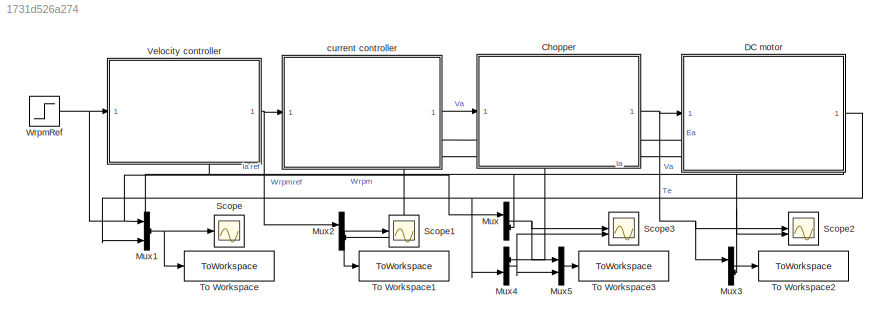
MODEL slx_1731d526a274
KIND model
CONFIG AbsTol = auto
CONFIG EnableMultiTasking = off
CONFIG FixedStep = 1e-5
CONFIG MaxStep = auto
CONFIG MinStep = auto
CONFIG RelTol = 1e-4
CONFIG SampleTimeConstraint = Unconstrained
CONFIG SolverName = FixedStepAuto
CONFIG StartTime = 0.0
CONFIG StopTime = 1
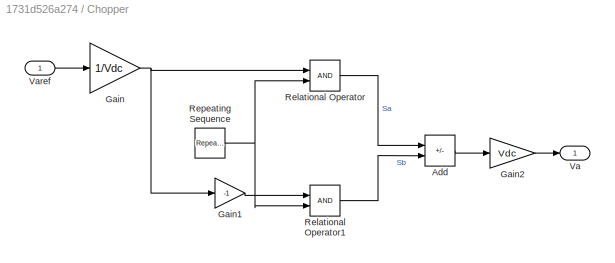
BLOCK [SubSystem] Chopper
  NameLocation = top
BLOCK [Sum] Chopper/Add
  IconShape = rectangular
  Inputs = +-
  SaturateOnIntegerOverflow = on
BLOCK [Gain] Chopper/Gain
  Gain = 1/Vdc
BLOCK [Gain] Chopper/Gain1
  Gain = -1
BLOCK [Gain] Chopper/Gain2
  Gain = Vdc
  OutDataTypeStr = double
BLOCK [RelationalOperator] Chopper/Relational Operator
  InputSameDT = off
  OutDataTypeStr = boolean
  RndMeth = Simplest
BLOCK [RelationalOperator] Chopper/Relational Operator1
  InputSameDT = off
  OutDataTypeStr = boolean
  RndMeth = Simplest
BLOCK [Reference] Chopper/Repeating Sequence  REF=simulink/Sources/Repeating
Sequence
  SourceBlock = simulink/Sources/Repeating\nSequence
  SourceType = Repeating table
BLOCK [Outport] Chopper/Va
BLOCK [Inport] Chopper/Varef
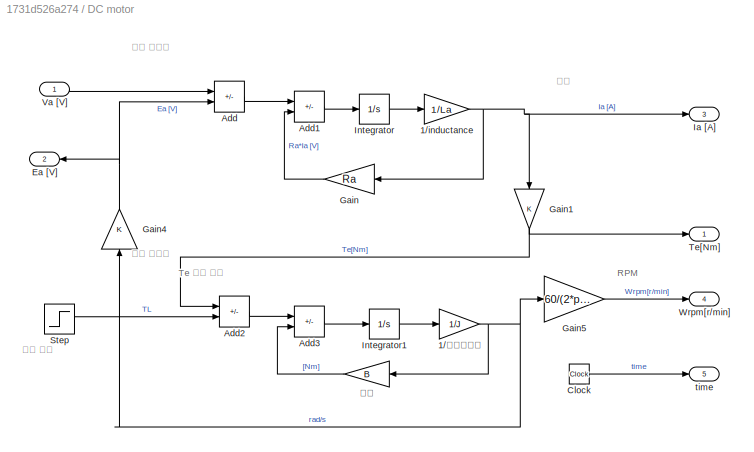
BLOCK [SubSystem] DC motor
  NameLocation = top
  PortSchema = {"entries":[{"content":{"sides":[{"content":{"connectorIds":["In1"]},"type":"ConnectorPlacement.EquallySpacedRectSide","uuid":"85d4c81a-2654-4ec9-b469-a8d409c866cc"},{"content":{"connectorIds":["Out1"],"side":"RIGHT"},"type":"ConnectorPlacement.EquallySpacedRectSide","uuid":"d9a934b4-e029-4d73-8471-bbe711fb3a53"},{"content":{"connectorIds":["Out5"],"side":"TOP"},"type":"ConnectorPlacement.EquallyS...<+410ch>
BLOCK [Gain] DC motor/1//inductance
  Gain = 1/La
BLOCK [Gain] DC motor/1//관성모멘트
  Gain = 1/J
BLOCK [Sum] DC motor/Add
  IconShape = rectangular
  Inputs = +-
BLOCK [Sum] DC motor/Add1
  IconShape = rectangular
  Inputs = +-
BLOCK [Sum] DC motor/Add2
  IconShape = rectangular
  Inputs = +-
BLOCK [Sum] DC motor/Add3
  IconShape = rectangular
  Inputs = +-
BLOCK [Clock] DC motor/Clock
BLOCK [Outport] DC motor/Ea [V]
  Port = 2
BLOCK [Gain] DC motor/Gain
  Gain = Ra
  NameLocation = top
BLOCK [Gain] DC motor/Gain1
  Gain = K
  NameLocation = left
BLOCK [Gain] DC motor/Gain4
  Gain = K
  NameLocation = right
BLOCK [Gain] DC motor/Gain5
  Gain = 60/(2*pi)
BLOCK [Outport] DC motor/Ia [A]
  Port = 3
BLOCK [Integrator] DC motor/Integrator
BLOCK [Integrator] DC motor/Integrator1
BLOCK [Step] DC motor/Step
  After = -10
  NameLocation = top
  SampleTime = 0
  Time = 0.5
BLOCK [Outport] DC motor/Te[Nm]
BLOCK [Inport] DC motor/Va [V]
BLOCK [Outport] DC motor/Wrpm[r//min]
  Port = 4
BLOCK [Outport] DC motor/time
  Port = 5
BLOCK [Gain] DC motor/마찰
  Gain = B
BLOCK [Mux] Mux
  DisplayOption = bar
  Inputs = 2
BLOCK [Mux] Mux1
  DisplayOption = bar
  Inputs = 3
BLOCK [Mux] Mux2
  DisplayOption = bar
  Inputs = 2
BLOCK [Mux] Mux3
  DisplayOption = bar
  Inputs = 2
BLOCK [Mux] Mux4
  DisplayOption = bar
  Inputs = 2
BLOCK [Mux] Mux5
  DisplayOption = bar
  Inputs = 2
BLOCK [Scope] Scope
  Floating = off
  NumInputPorts = 1
  ScopeSpecificationString = Simulink.scopes.TimeScopeBlockCfg('CurrentConfiguration', extmgr.ConfigurationSet(extmgr.Configuration('Core','General UI',true),extmgr.Configuration('Core','Source UI',true),extmgr.Configuration('Sources','WiredSimulink',true),extmgr.Configuration('Visuals','Time Domain',true,'SerializedDisplays',{struct('MinYLimReal','-312.5','MaxYLimReal','2812.5','YLabelReal','','MinYLimMag',' 0.00000','MaxYLi...<+1609ch>
BLOCK [Scope] Scope1
  Floating = off
  NumInputPorts = 1
  ScopeSpecificationString = Simulink.scopes.TimeScopeBlockCfg('CurrentConfiguration', extmgr.ConfigurationSet(extmgr.Configuration('Core','General UI',true),extmgr.Configuration('Core','Source UI',true),extmgr.Configuration('Sources','WiredSimulink',true,'DataLoggingVariableName','ScopeData1'),extmgr.Configuration('Visuals','Time Domain',true,'SerializedDisplays',{struct('MinYLimReal','-14.73631','MaxYLimReal','26.36625','YL...<+1652ch>
BLOCK [Scope] Scope2
  Floating = off
  NumInputPorts = 2
  ScopeSpecificationString = Simulink.scopes.TimeScopeBlockCfg('CurrentConfiguration', extmgr.ConfigurationSet(extmgr.Configuration('Core','General UI',true),extmgr.Configuration('Core','Source UI',true),extmgr.Configuration('Sources','WiredSimulink',true,'DataLoggingVariableName','ScopeData2'),extmgr.Configuration('Visuals','Time Domain',true,'SerializedDisplays',{struct('MinYLimReal','-126.75276','MaxYLimReal','1140.77487',...<+2460ch>
BLOCK [Scope] Scope3
  Floating = off
  NumInputPorts = 2
  ScopeSpecificationString = Simulink.scopes.TimeScopeBlockCfg('CurrentConfiguration', extmgr.ConfigurationSet(extmgr.Configuration('Core','General UI',true),extmgr.Configuration('Core','Source UI',true),extmgr.Configuration('Sources','WiredSimulink',true,'DataLoggingVariableName','ScopeData1'),extmgr.Configuration('Visuals','Time Domain',true,'SerializedDisplays',{struct('MinYLimReal','-316.31339','MaxYLimReal','2846.82055',...<+2397ch>
BLOCK [ToWorkspace] To Workspace
  FixptAsFi = on
  MaxDataPoints = inf
  SampleTime = -1
  SaveFormat = Timeseries
  VariableName = veloOut
BLOCK [ToWorkspace] To Workspace1
  FixptAsFi = on
  MaxDataPoints = inf
  SampleTime = -1
  SaveFormat = Timeseries
  VariableName = curOut
BLOCK [ToWorkspace] To Workspace2
  FixptAsFi = on
  MaxDataPoints = inf
  SampleTime = -1
  SaveFormat = Timeseries
  VariableName = motorOut
BLOCK [ToWorkspace] To Workspace3
  FixptAsFi = on
  MaxDataPoints = inf
  SampleTime = -1
  SaveFormat = Timeseries
  VariableName = chopOut
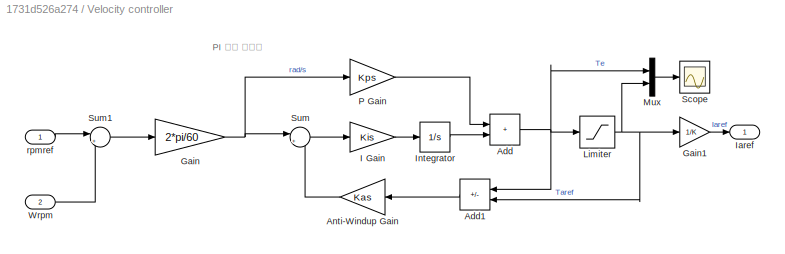
BLOCK [SubSystem] Velocity controller
  NameLocation = top
  PortSchema = {"entries":[{"content":{"sides":[{"content":{"connectorIds":["In1"]},"type":"ConnectorPlacement.EquallySpacedRectSide","uuid":"5eb2e018-7adc-4776-84e2-3754f72fb2b9"},{"content":{"connectorIds":["Out1"],"side":"RIGHT"},"type":"ConnectorPlacement.EquallySpacedRectSide","uuid":"2c350664-51fa-477f-b85c-6d22ec9e1a05"},{"content":{"side":"TOP"},"type":"ConnectorPlacement.EquallySpacedRectSide","uuid":"c...<+371ch>
BLOCK [Sum] Velocity controller/Add
  IconShape = rectangular
BLOCK [Sum] Velocity controller/Add1
  IconShape = rectangular
  Inputs = +-
  NameLocation = top
BLOCK [Gain] Velocity controller/Anti-Windup Gain
  Gain = Kas
BLOCK [Gain] Velocity controller/Gain
  Gain = 2*pi/60
BLOCK [Gain] Velocity controller/Gain1
  Gain = 1/K
BLOCK [Gain] Velocity controller/I Gain
  Gain = Kis
BLOCK [Outport] Velocity controller/Iaref
BLOCK [Integrator] Velocity controller/Integrator
BLOCK [Saturate] Velocity controller/Limiter
  LowerLimit = -Te_rated
  UpperLimit = Te_rated
BLOCK [Mux] Velocity controller/Mux
  DisplayOption = bar
  Inputs = 2
BLOCK [Gain] Velocity controller/P Gain
  Gain = Kps
BLOCK [Scope] Velocity controller/Scope
  Floating = off
  NumInputPorts = 1
  ScopeSpecificationString = Simulink.scopes.TimeScopeBlockCfg('CurrentConfiguration', extmgr.ConfigurationSet(extmgr.Configuration('Core','General UI',true),extmgr.Configuration('Core','Source UI',true),extmgr.Configuration('Sources','WiredSimulink',true,'DataLoggingVariableName','ScopeData3'),extmgr.Configuration('Visuals','Time Domain',true,'SerializedDisplays',{struct('MinYLimReal','-796531.69235','MaxYLimReal','302635.57...<+1525ch>
BLOCK [Sum] Velocity controller/Sum
  Inputs = |+-
BLOCK [Sum] Velocity controller/Sum1
  Inputs = |+-
BLOCK [Inport] Velocity controller/Wrpm
  Port = 2
BLOCK [Inport] Velocity controller/rpmref
BLOCK [Step] WrpmRef
  After = 1000
  SampleTime = 0
  Time = 0.05
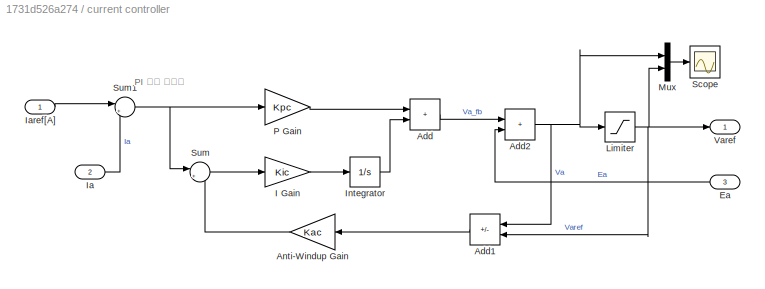
BLOCK [SubSystem] current controller
  NameLocation = top
  PortSchema = {"entries":[{"content":{"sides":[{"content":{"connectorIds":["In1"]},"type":"ConnectorPlacement.EquallySpacedRectSide","uuid":"cafd2066-022e-4be2-a315-6658f49e1702"},{"content":{"connectorIds":["Out1"],"side":"RIGHT"},"type":"ConnectorPlacement.EquallySpacedRectSide","uuid":"e39f233d-5bd3-4f8b-9519-c23b51301a08"},{"content":{"side":"TOP"},"type":"ConnectorPlacement.EquallySpacedRectSide","uuid":"c...<+377ch>
BLOCK [Sum] current controller/Add
  IconShape = rectangular
BLOCK [Sum] current controller/Add1
  IconShape = rectangular
  Inputs = +-
  NameLocation = top
BLOCK [Sum] current controller/Add2
  IconShape = rectangular
BLOCK [Gain] current controller/Anti-Windup Gain
  Gain = Kac
BLOCK [Inport] current controller/Ea
  NameLocation = top
  Port = 3
BLOCK [Gain] current controller/I Gain
  Gain = Kic
BLOCK [Inport] current controller/Ia
  Port = 2
BLOCK [Inport] current controller/Iaref[A]
BLOCK [Integrator] current controller/Integrator
BLOCK [Saturate] current controller/Limiter
  LowerLimit = -Va_rated
  UpperLimit = Va_rated
BLOCK [Mux] current controller/Mux
  DisplayOption = bar
  Inputs = 2
BLOCK [Gain] current controller/P Gain
  Gain = Kpc
BLOCK [Scope] current controller/Scope
  Floating = off
  NumInputPorts = 1
  ScopeSpecificationString = Simulink.scopes.TimeScopeBlockCfg('CurrentConfiguration', extmgr.ConfigurationSet(extmgr.Configuration('Core','General UI',true),extmgr.Configuration('Core','Source UI',true),extmgr.Configuration('Sources','WiredSimulink',true,'DataLoggingVariableName','ScopeData1'),extmgr.Configuration('Visuals','Time Domain',true,'SerializedDisplays',{struct('MinYLimReal','-2.15017','MaxYLimReal','19.35154','YLa...<+1812ch>
BLOCK [Sum] current controller/Sum
  Inputs = |+-
BLOCK [Sum] current controller/Sum1
  Inputs = |+-
BLOCK [Outport] current controller/Varef
ANNOTATION DC motor: RPM
ANNOTATION DC motor: Te 입력 토크
ANNOTATION DC motor: 기계 시스템
ANNOTATION DC motor: 부하 토크
ANNOTATION DC motor: 전류
ANNOTATION DC motor: 직류 전동기
ANNOTATION Velocity controller: PI 속도 제어기
ANNOTATION current controller: PI 전류 제어기
LINE Chopper/Add:1 -> Chopper/Gain2:1
LINE Chopper/Gain1:1 -> Chopper/Relational Operator1:1
LINE Chopper/Gain2:1 -> Chopper/Va:1
NET Chopper/Gain:1 -> Chopper/Gain1:1, Chopper/Relational Operator:1
LINE Chopper/Relational Operator1:1 -> Chopper/Add:2
LINE Chopper/Relational Operator:1 -> Chopper/Add:1
NET Chopper/Repeating Sequence:1 -> Chopper/Relational Operator1:2, Chopper/Relational Operator:2
LINE Chopper/Varef:1 -> Chopper/Gain:1
NET Chopper:1 -> DC motor:1, Mux3:1, Scope2:1
NET DC motor/1//inductance:1 -> DC motor/Gain1:1, DC motor/Gain:1, DC motor/Ia [A]:1
NET DC motor/1//관성모멘트:1 -> DC motor/Gain4:1, DC motor/Gain5:1, DC motor/마찰:1
LINE DC motor/Add1:1 -> DC motor/Integrator:1
LINE DC motor/Add2:1 -> DC motor/Add3:1
LINE DC motor/Add3:1 -> DC motor/Integrator1:1
LINE DC motor/Add:1 -> DC motor/Add1:1
LINE DC motor/Clock:1 -> DC motor/time:1
NET DC motor/Gain1:1 -> DC motor/Add2:1, DC motor/Te[Nm]:1
NET DC motor/Gain4:1 -> DC motor/Add:2, DC motor/Ea [V]:1
LINE DC motor/Gain5:1 -> DC motor/Wrpm[r//min]:1
LINE DC motor/Gain:1 -> DC motor/Add1:2
LINE DC motor/Integrator1:1 -> DC motor/1//관성모멘트:1
LINE DC motor/Integrator:1 -> DC motor/1//inductance:1
LINE DC motor/Step:1 -> DC motor/Add2:2
LINE DC motor/Va [V]:1 -> DC motor/Add:1
LINE DC motor/마찰:1 -> DC motor/Add3:2
NET DC motor:1 -> Mux1:3, Mux4:2
LINE DC motor:2 -> current controller:3
NET DC motor:3 -> Mux2:2, Mux4:1, current controller:2
NET DC motor:4 -> Mux1:2, Mux3:2, Mux:2, Scope2:2, Velocity controller:2
NET Mux1:1 -> Scope:1, To Workspace:1
NET Mux2:1 -> Scope1:1, To Workspace1:1
LINE Mux3:1 -> To Workspace2:1
NET Mux4:1 -> Mux5:2, Scope3:2
LINE Mux5:1 -> To Workspace3:1
NET Mux:1 -> Mux5:1, Scope3:1
LINE Velocity controller/Add1:1 -> Velocity controller/Anti-Windup Gain:1
NET Velocity controller/Add:1 -> Velocity controller/Add1:1, Velocity controller/Limiter:1, Velocity controller/Mux:1
LINE Velocity controller/Anti-Windup Gain:1 -> Velocity controller/Sum:2
LINE Velocity controller/Gain1:1 -> Velocity controller/Iaref:1
NET Velocity controller/Gain:1 -> Velocity controller/P Gain:1, Velocity controller/Sum:1
LINE Velocity controller/I Gain:1 -> Velocity controller/Integrator:1
LINE Velocity controller/Integrator:1 -> Velocity controller/Add:2
NET Velocity controller/Limiter:1 -> Velocity controller/Add1:2, Velocity controller/Gain1:1, Velocity controller/Mux:2
LINE Velocity controller/Mux:1 -> Velocity controller/Scope:1
LINE Velocity controller/P Gain:1 -> Velocity controller/Add:1
LINE Velocity controller/Sum1:1 -> Velocity controller/Gain:1
LINE Velocity controller/Sum:1 -> Velocity controller/I Gain:1
LINE Velocity controller/Wrpm:1 -> Velocity controller/Sum1:2
LINE Velocity controller/rpmref:1 -> Velocity controller/Sum1:1
NET Velocity controller:1 -> Mux2:1, current controller:1
NET WrpmRef:1 -> Mux1:1, Mux:1, Velocity controller:1
LINE current controller/Add1:1 -> current controller/Anti-Windup Gain:1
NET current controller/Add2:1 -> current controller/Add1:1, current controller/Limiter:1, current controller/Mux:1
LINE current controller/Add:1 -> current controller/Add2:1
LINE current controller/Anti-Windup Gain:1 -> current controller/Sum:2
LINE current controller/Ea:1 -> current controller/Add2:2
LINE current controller/I Gain:1 -> current controller/Integrator:1
LINE current controller/Ia:1 -> current controller/Sum1:2
LINE current controller/Iaref[A]:1 -> current controller/Sum1:1
LINE current controller/Integrator:1 -> current controller/Add:2
NET current controller/Limiter:1 -> current controller/Add1:2, current controller/Mux:2, current controller/Varef:1
LINE current controller/Mux:1 -> current controller/Scope:1
LINE current controller/P Gain:1 -> current controller/Add:1
NET current controller/Sum1:1 -> current controller/P Gain:1, current controller/Sum:1
LINE current controller/Sum:1 -> current controller/I Gain:1
LINE current controller:1 -> Chopper:1
note: NET lines group one-source signal fan-out (src -> all destinations, sorted); 1:1 wires keep LINE
